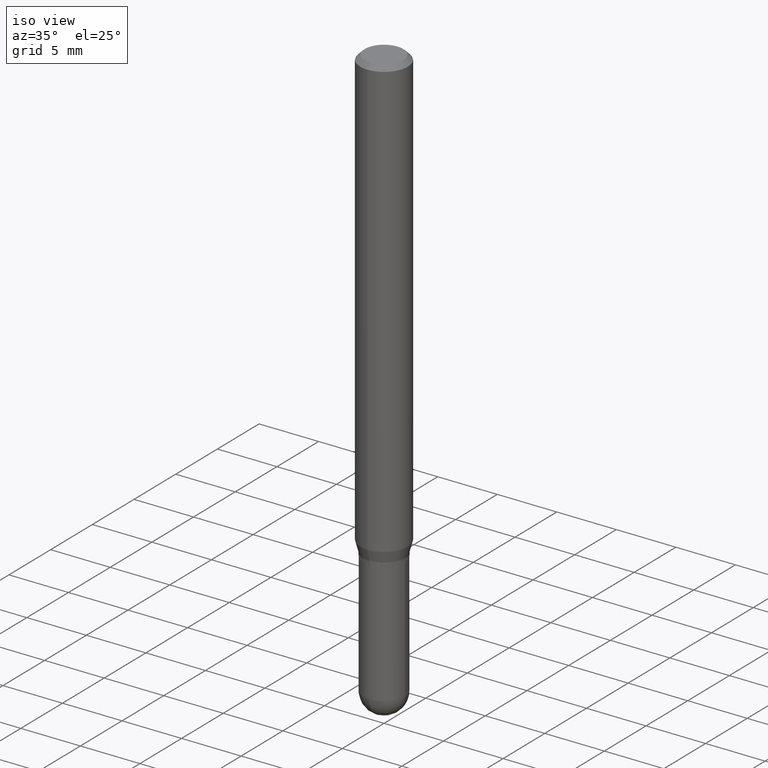
[diagram: clean part render]
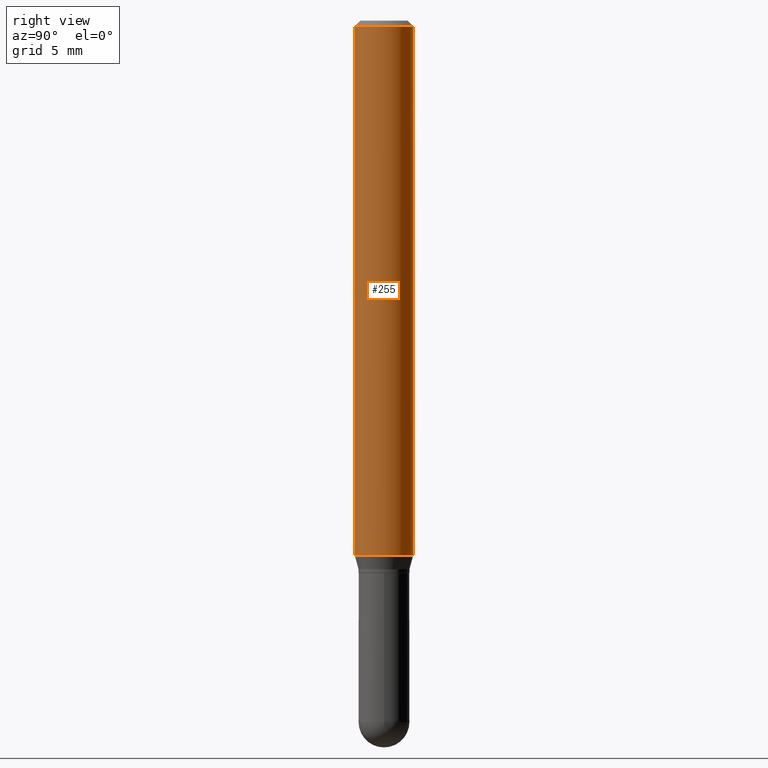
[diagram: tour spotlight — one face highlighted and labeled with its STEP entity id]
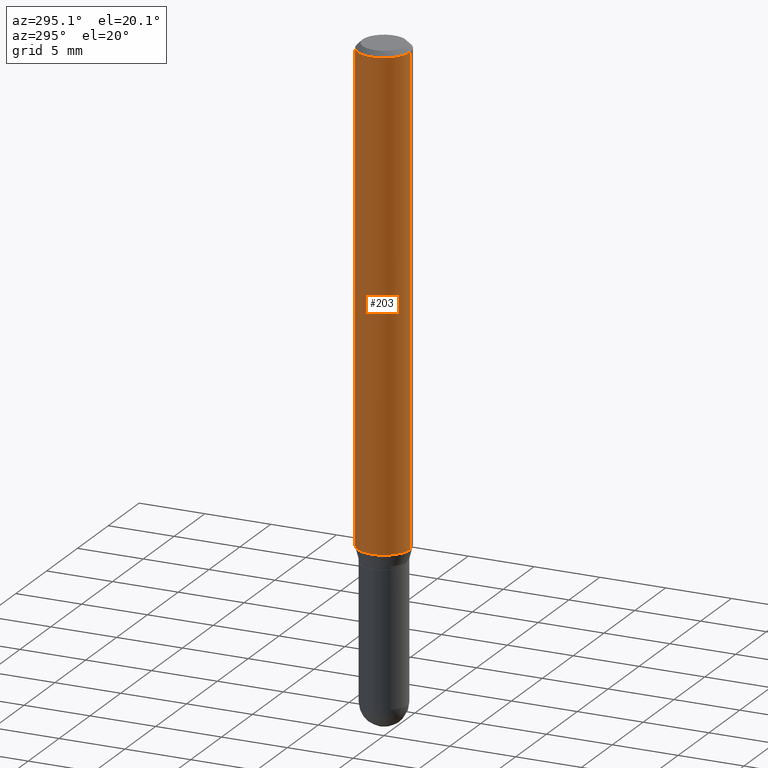
[diagram: tour spotlight — one face highlighted and labeled with its STEP entity id]
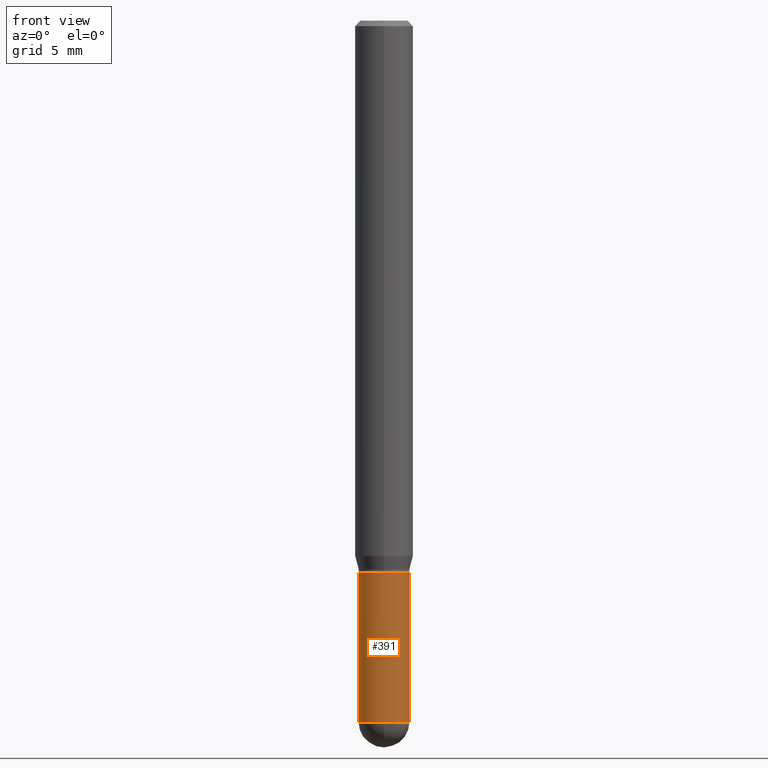
[diagram: tour spotlight — one face highlighted and labeled with its STEP entity id]
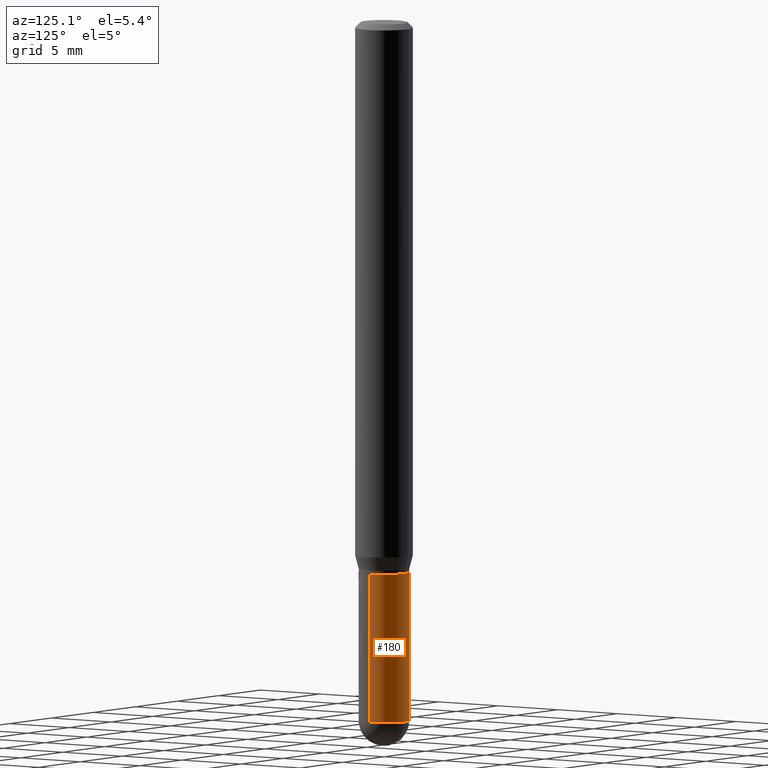
[diagram: tour spotlight — one face highlighted and labeled with its STEP entity id]
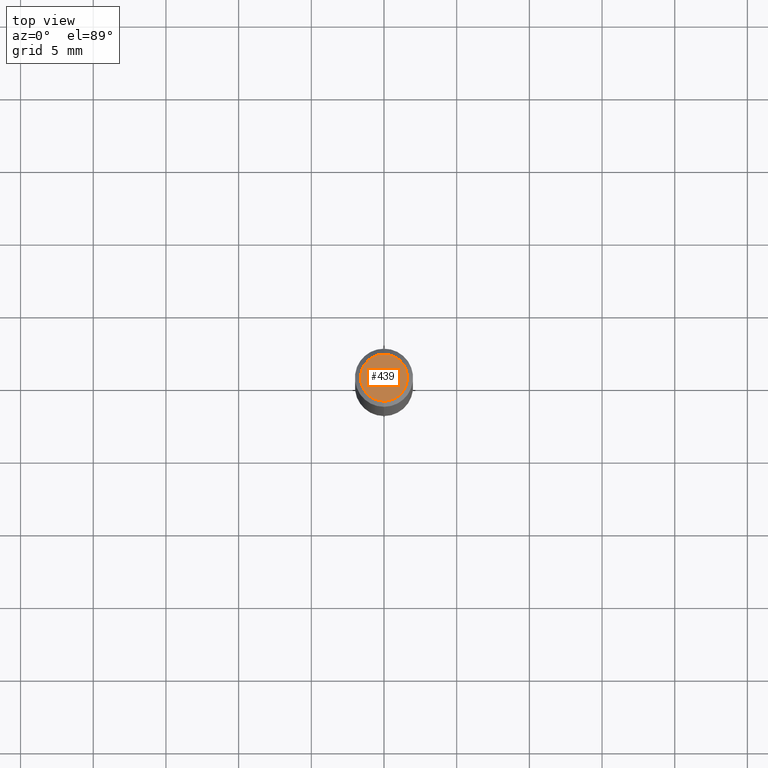
[diagram: tour spotlight — one face highlighted and labeled with its STEP entity id]
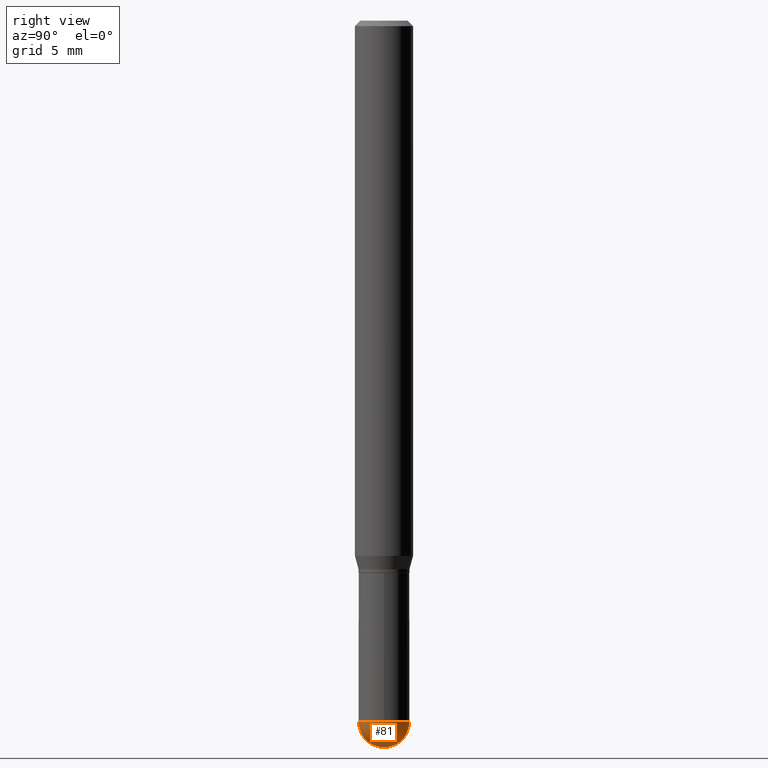
[diagram: tour spotlight — one face highlighted and labeled with its STEP entity id]
A machine part: a face-by-face anatomy tour. The part has 17 B-rep faces; the first image is the clean iso view, then the 6 largest visible faces are spotlighted one at a time (largest first), each with its STEP entity span.

Face 1 — right view, entity #255. In plain terms, the highlighted cylindrical surface (edge-blend (fillet) strip) has radius 2.0002 mm, axis along (-0, 0, 1).
Definition (entity closure, byte-faithful):
#2 = CIRCLE ( 'NONE', #61, 0.07875000000000000056 ) ;
#8 = CARTESIAN_POINT ( 'NONE',  ( -5.499083108677930499E-16, -0.07875000000000004219, -0.01499999999999973403 ) ) ;
#27 = EDGE_CURVE ( 'NONE', #507, #297, #350, .T. ) ;
#54 = CARTESIAN_POINT ( 'NONE',  ( 5.595524044111143991E-16, 0.07874999999999994504, -0.01500000000000028394 ) ) ;
#61 = AXIS2_PLACEMENT_3D ( 'NONE', #432, #241, #441 ) ;
#74 = EDGE_CURVE ( 'NONE', #297, #286, #2, .T. ) ;
#76 = AXIS2_PLACEMENT_3D ( 'NONE', #436, #315, #478 ) ;
#94 = VERTEX_POINT ( 'NONE', #479 ) ;
#101 = ORIENTED_EDGE ( 'NONE', *, *, #74, .F. ) ;
#132 = FACE_OUTER_BOUND ( 'NONE', #388, .T. ) ;
#134 = ORIENTED_EDGE ( 'NONE', *, *, #187, .T. ) ;
#167 = CYLINDRICAL_SURFACE ( 'NONE', #451, 0.07874999999999997280 ) ;
#181 = CARTESIAN_POINT ( 'NONE',  ( -5.499083108677578469E-16, -0.07875000000000501044, -1.449339299545445270 ) ) ;
#187 = EDGE_CURVE ( 'NONE', #507, #94, #497, .T. ) ;
#194 = DIRECTION ( 'NONE',  ( -2.445670945378724655E-29, 3.491191864012879314E-15, 1.000000000000000000 ) ) ;
#217 = DIRECTION ( 'NONE',  ( -6.982962677686265922E-15, -1.000000000000000000, 3.491191864012879709E-15 ) ) ;
#221 = EDGE_CURVE ( 'NONE', #94, #286, #232, .T. ) ;
#222 = CARTESIAN_POINT ( 'NONE',  ( -5.499083108677932471E-16, -0.07874999999999997280, 2.749313592910141844E-16 ) ) ;
#229 = ORIENTED_EDGE ( 'NONE', *, *, #221, .T. ) ;
#232 = LINE ( 'NONE', #395, #418 ) ;
#241 = DIRECTION ( 'NONE',  ( -2.445670945378724655E-29, 3.491191864012879314E-15, 1.000000000000000000 ) ) ;
#255 = ADVANCED_FACE ( 'NONE', ( #132 ), #167, .T. ) ;
#286 = VERTEX_POINT ( 'NONE', #54 ) ;
#297 = VERTEX_POINT ( 'NONE', #8 ) ;
#315 = DIRECTION ( 'NONE',  ( -2.445670945378724655E-29, 3.491191864012879314E-15, 1.000000000000000000 ) ) ;
#331 = DIRECTION ( 'NONE',  ( -2.445670945378724655E-29, 3.491191864012879314E-15, 1.000000000000000000 ) ) ;
#335 = ORIENTED_EDGE ( 'NONE', *, *, #27, .F. ) ;
#342 = DIRECTION ( 'NONE',  ( -2.445670945378724655E-29, 3.491191864012879314E-15, 1.000000000000000000 ) ) ;
#350 = LINE ( 'NONE', #222, #490 ) ;
#388 = EDGE_LOOP ( 'NONE', ( #134, #229, #101, #335 ) ) ;
#395 = CARTESIAN_POINT ( 'NONE',  ( 5.595524044110786045E-16, 0.07874999999999997280, -2.749313592910141844E-16 ) ) ;
#418 = VECTOR ( 'NONE', #194, 39.37007874015748143 ) ;
#432 = CARTESIAN_POINT ( 'NONE',  ( 3.668506418068089103E-31, -5.236787796019322053E-17, -0.01500000000000000812 ) ) ;
#436 = CARTESIAN_POINT ( 'NONE',  ( 3.544607014893848189E-29, -5.059921570767185475E-15, -1.449339299545445714 ) ) ;
#441 = DIRECTION ( 'NONE',  ( -6.982962677686264344E-15, -1.000000000000000000, 3.496114991891765576E-15 ) ) ;
#451 = AXIS2_PLACEMENT_3D ( 'NONE', #455, #331, #217 ) ;
#455 = CARTESIAN_POINT ( 'NONE',  ( 0.000000000000000000, 0.000000000000000000, 0.000000000000000000 ) ) ;
#478 = DIRECTION ( 'NONE',  ( -6.982962677686265922E-15, -1.000000000000000000, 3.469013325287954477E-15 ) ) ;
#479 = CARTESIAN_POINT ( 'NONE',  ( 5.595524044111142018E-16, 0.07874999999999494904, -1.449339299545445936 ) ) ;
#490 = VECTOR ( 'NONE', #342, 39.37007874015748143 ) ;
#497 = CIRCLE ( 'NONE', #76, 0.07874999999999997280 ) ;
#507 = VERTEX_POINT ( 'NONE', #181 ) ;

Face 2 — auxiliary view, entity #203. In plain terms, the highlighted cylindrical surface (edge-blend (fillet) strip) has radius 2.0002 mm, axis along (-0, 0, 1).
Definition (entity closure, byte-faithful):
#8 = CARTESIAN_POINT ( 'NONE',  ( -5.499083108677930499E-16, -0.07875000000000004219, -0.01499999999999973403 ) ) ;
#12 = EDGE_CURVE ( 'NONE', #94, #507, #140, .T. ) ;
#27 = EDGE_CURVE ( 'NONE', #507, #297, #350, .T. ) ;
#54 = CARTESIAN_POINT ( 'NONE',  ( 5.595524044111143991E-16, 0.07874999999999994504, -0.01500000000000028394 ) ) ;
#85 = AXIS2_PLACEMENT_3D ( 'NONE', #280, #355, #154 ) ;
#93 = CIRCLE ( 'NONE', #435, 0.07875000000000000056 ) ;
#94 = VERTEX_POINT ( 'NONE', #479 ) ;
#123 = DIRECTION ( 'NONE',  ( -6.982962677686264344E-15, -1.000000000000000000, 3.496114991891765576E-15 ) ) ;
#140 = CIRCLE ( 'NONE', #207, 0.07874999999999997280 ) ;
#148 = DIRECTION ( 'NONE',  ( -6.982962677686265922E-15, -1.000000000000000000, 3.469013325287954477E-15 ) ) ;
#149 = EDGE_CURVE ( 'NONE', #286, #297, #93, .T. ) ;
#154 = DIRECTION ( 'NONE',  ( -6.982962677686265922E-15, -1.000000000000000000, 3.491191864012879709E-15 ) ) ;
#161 = FACE_OUTER_BOUND ( 'NONE', #259, .T. ) ;
#181 = CARTESIAN_POINT ( 'NONE',  ( -5.499083108677578469E-16, -0.07875000000000501044, -1.449339299545445270 ) ) ;
#194 = DIRECTION ( 'NONE',  ( -2.445670945378724655E-29, 3.491191864012879314E-15, 1.000000000000000000 ) ) ;
#203 = ADVANCED_FACE ( 'NONE', ( #161 ), #278, .T. ) ;
#207 = AXIS2_PLACEMENT_3D ( 'NONE', #265, #225, #148 ) ;
#219 = ORIENTED_EDGE ( 'NONE', *, *, #27, .T. ) ;
#221 = EDGE_CURVE ( 'NONE', #94, #286, #232, .T. ) ;
#222 = CARTESIAN_POINT ( 'NONE',  ( -5.499083108677932471E-16, -0.07874999999999997280, 2.749313592910141844E-16 ) ) ;
#225 = DIRECTION ( 'NONE',  ( -2.445670945378724655E-29, 3.491191864012879314E-15, 1.000000000000000000 ) ) ;
#232 = LINE ( 'NONE', #395, #418 ) ;
#259 = EDGE_LOOP ( 'NONE', ( #290, #304, #219, #502 ) ) ;
#265 = CARTESIAN_POINT ( 'NONE',  ( 3.544607014893848189E-29, -5.059921570767185475E-15, -1.449339299545445714 ) ) ;
#278 = CYLINDRICAL_SURFACE ( 'NONE', #85, 0.07874999999999997280 ) ;
#280 = CARTESIAN_POINT ( 'NONE',  ( 0.000000000000000000, 0.000000000000000000, 0.000000000000000000 ) ) ;
#286 = VERTEX_POINT ( 'NONE', #54 ) ;
#290 = ORIENTED_EDGE ( 'NONE', *, *, #221, .F. ) ;
#297 = VERTEX_POINT ( 'NONE', #8 ) ;
#304 = ORIENTED_EDGE ( 'NONE', *, *, #12, .T. ) ;
#342 = DIRECTION ( 'NONE',  ( -2.445670945378724655E-29, 3.491191864012879314E-15, 1.000000000000000000 ) ) ;
#350 = LINE ( 'NONE', #222, #490 ) ;
#355 = DIRECTION ( 'NONE',  ( -2.445670945378724655E-29, 3.491191864012879314E-15, 1.000000000000000000 ) ) ;
#358 = CARTESIAN_POINT ( 'NONE',  ( 3.668506418068089103E-31, -5.236787796019322053E-17, -0.01500000000000000812 ) ) ;
#395 = CARTESIAN_POINT ( 'NONE',  ( 5.595524044110786045E-16, 0.07874999999999997280, -2.749313592910141844E-16 ) ) ;
#418 = VECTOR ( 'NONE', #194, 39.37007874015748143 ) ;
#435 = AXIS2_PLACEMENT_3D ( 'NONE', #358, #481, #123 ) ;
#479 = CARTESIAN_POINT ( 'NONE',  ( 5.595524044111142018E-16, 0.07874999999999494904, -1.449339299545445936 ) ) ;
#481 = DIRECTION ( 'NONE',  ( -2.445670945378724655E-29, 3.491191864012879314E-15, 1.000000000000000000 ) ) ;
#490 = VECTOR ( 'NONE', #342, 39.37007874015748143 ) ;
#502 = ORIENTED_EDGE ( 'NONE', *, *, #149, .F. ) ;
#507 = VERTEX_POINT ( 'NONE', #181 ) ;

Face 3 — front view, entity #391. In plain terms, the highlighted cylindrical surface (edge-blend (fillet) strip) has radius 1.7501 mm, axis along (-0, 0, 1).
Definition (entity closure, byte-faithful):
#16 = VERTEX_POINT ( 'NONE', #72 ) ;
#41 = CARTESIAN_POINT ( 'NONE',  ( 4.645412544229285965E-29, -6.632417951266439838E-15, -1.899600000000000177 ) ) ;
#45 = LINE ( 'NONE', #317, #164 ) ;
#52 = CIRCLE ( 'NONE', #86, 0.06890000000000007230 ) ;
#72 = CARTESIAN_POINT ( 'NONE',  ( -4.895639449386624073E-16, -0.06890000000000662261, -1.899599999999999955 ) ) ;
#86 = AXIS2_PLACEMENT_3D ( 'NONE', #186, #469, #336 ) ;
#90 = CARTESIAN_POINT ( 'NONE',  ( 3.658665880933582389E-29, -5.223605231043229660E-15, -1.496099999999999985 ) ) ;
#98 = EDGE_CURVE ( 'NONE', #16, #295, #118, .T. ) ;
#118 = CIRCLE ( 'NONE', #192, 0.06890000000000007230 ) ;
#127 = DIRECTION ( 'NONE',  ( -2.445468806185136597E-29, 3.491481338843145583E-15, 1.000000000000000000 ) ) ;
#128 = ORIENTED_EDGE ( 'NONE', *, *, #98, .T. ) ;
#151 = ORIENTED_EDGE ( 'NONE', *, *, #284, .F. ) ;
#156 = DIRECTION ( 'NONE',  ( -2.445468806185136597E-29, 3.491481338843145583E-15, 1.000000000000000000 ) ) ;
#164 = VECTOR ( 'NONE', #270, 39.37007874015748143 ) ;
#176 = DIRECTION ( 'NONE',  ( -2.445468806185136877E-29, 3.491481338843145188E-15, 1.000000000000000000 ) ) ;
#185 = ORIENTED_EDGE ( 'NONE', *, *, #444, .T. ) ;
#186 = CARTESIAN_POINT ( 'NONE',  ( 4.645412544229285965E-29, -6.632417951266439838E-15, -1.899600000000000177 ) ) ;
#192 = AXIS2_PLACEMENT_3D ( 'NONE', #41, #156, #396 ) ;
#205 = CYLINDRICAL_SURFACE ( 'NONE', #460, 0.06890000000000007230 ) ;
#211 = EDGE_CURVE ( 'NONE', #295, #321, #45, .T. ) ;
#213 = ORIENTED_EDGE ( 'NONE', *, *, #211, .T. ) ;
#215 = FACE_OUTER_BOUND ( 'NONE', #447, .T. ) ;
#226 = AXIS2_PLACEMENT_3D ( 'NONE', #90, #289, #377 ) ;
#251 = CARTESIAN_POINT ( 'NONE',  ( 0.06890000000000008618, -6.409137719647418882E-15, -1.899600000000000177 ) ) ;
#253 = DIRECTION ( 'NONE',  ( 1.000000000000000000, -6.982962677686265922E-15, 4.876176775795935232E-29 ) ) ;
#268 = CARTESIAN_POINT ( 'NONE',  ( -0.06890000000000008618, -5.438447646216124813E-15, -1.899600000000000177 ) ) ;
#270 = DIRECTION ( 'NONE',  ( -2.445468806185136877E-29, 3.491481338843145188E-15, 1.000000000000000000 ) ) ;
#284 = EDGE_CURVE ( 'NONE', #504, #369, #446, .T. ) ;
#289 = DIRECTION ( 'NONE',  ( -2.445468806185136597E-29, 3.491481338843145583E-15, 1.000000000000000000 ) ) ;
#293 = EDGE_CURVE ( 'NONE', #369, #321, #339, .T. ) ;
#295 = VERTEX_POINT ( 'NONE', #251 ) ;
#317 = CARTESIAN_POINT ( 'NONE',  ( 0.06890000000000007230, -4.811261284925842315E-16, 3.359685798523402771E-30 ) ) ;
#321 = VERTEX_POINT ( 'NONE', #370 ) ;
#336 = DIRECTION ( 'NONE',  ( 1.000000000000000000, -6.982962677686273021E-15, 0.000000000000000000 ) ) ;
#339 = CIRCLE ( 'NONE', #226, 0.06890000000000007230 ) ;
#369 = VERTEX_POINT ( 'NONE', #414 ) ;
#370 = CARTESIAN_POINT ( 'NONE',  ( 0.06890000000000007230, -5.704731359535814187E-15, -1.496099999999999985 ) ) ;
#373 = CARTESIAN_POINT ( 'NONE',  ( 0.000000000000000000, 0.000000000000000000, 0.000000000000000000 ) ) ;
#375 = VECTOR ( 'NONE', #176, 39.37007874015748143 ) ;
#377 = DIRECTION ( 'NONE',  ( 1.000000000000000000, -6.982962677686273021E-15, 0.000000000000000000 ) ) ;
#391 = ADVANCED_FACE ( 'NONE', ( #215 ), #205, .T. ) ;
#396 = DIRECTION ( 'NONE',  ( 1.000000000000000000, -6.982962677686273021E-15, 0.000000000000000000 ) ) ;
#414 = CARTESIAN_POINT ( 'NONE',  ( -0.06890000000000007230, -5.438447646216124813E-15, -1.496099999999999985 ) ) ;
#444 = EDGE_CURVE ( 'NONE', #504, #16, #52, .T. ) ;
#446 = LINE ( 'NONE', #491, #375 ) ;
#447 = EDGE_LOOP ( 'NONE', ( #151, #185, #128, #213, #492 ) ) ;
#460 = AXIS2_PLACEMENT_3D ( 'NONE', #373, #127, #253 ) ;
#469 = DIRECTION ( 'NONE',  ( -2.445468806185136597E-29, 3.491481338843145583E-15, 1.000000000000000000 ) ) ;
#491 = CARTESIAN_POINT ( 'NONE',  ( -0.06890000000000007230, 4.895639449387095418E-16, -3.389146277185633520E-30 ) ) ;
#492 = ORIENTED_EDGE ( 'NONE', *, *, #293, .F. ) ;
#504 = VERTEX_POINT ( 'NONE', #268 ) ;

Face 4 — auxiliary view, entity #180. In plain terms, the highlighted cylindrical surface (edge-blend (fillet) strip) has radius 1.7501 mm, axis along (-0, 0, 1).
Definition (entity closure, byte-faithful):
#20 = EDGE_CURVE ( 'NONE', #321, #369, #338, .T. ) ;
#29 = CARTESIAN_POINT ( 'NONE',  ( 4.811261284926304785E-16, 0.06889999999999341096, -1.899600000000000399 ) ) ;
#33 = VERTEX_POINT ( 'NONE', #29 ) ;
#45 = LINE ( 'NONE', #317, #164 ) ;
#88 = CARTESIAN_POINT ( 'NONE',  ( 4.645412544229285965E-29, -6.632417951266439838E-15, -1.899600000000000177 ) ) ;
#95 = CIRCLE ( 'NONE', #452, 0.06890000000000007230 ) ;
#104 = EDGE_LOOP ( 'NONE', ( #484, #458, #371, #182, #283 ) ) ;
#116 = DIRECTION ( 'NONE',  ( 1.000000000000000000, -6.982962677686265922E-15, 4.876176775795935232E-29 ) ) ;
#143 = DIRECTION ( 'NONE',  ( -2.445468806185136597E-29, 3.491481338843145583E-15, 1.000000000000000000 ) ) ;
#160 = DIRECTION ( 'NONE',  ( -2.445468806185136597E-29, 3.491481338843145583E-15, 1.000000000000000000 ) ) ;
#162 = FACE_OUTER_BOUND ( 'NONE', #104, .T. ) ;
#164 = VECTOR ( 'NONE', #270, 39.37007874015748143 ) ;
#172 = AXIS2_PLACEMENT_3D ( 'NONE', #88, #448, #483 ) ;
#176 = DIRECTION ( 'NONE',  ( -2.445468806185136877E-29, 3.491481338843145188E-15, 1.000000000000000000 ) ) ;
#180 = ADVANCED_FACE ( 'NONE', ( #162 ), #509, .T. ) ;
#182 = ORIENTED_EDGE ( 'NONE', *, *, #211, .F. ) ;
#190 = DIRECTION ( 'NONE',  ( 1.000000000000000000, -6.982962677686273021E-15, 0.000000000000000000 ) ) ;
#211 = EDGE_CURVE ( 'NONE', #295, #321, #45, .T. ) ;
#230 = CARTESIAN_POINT ( 'NONE',  ( 3.658665880933582389E-29, -5.223605231043229660E-15, -1.496099999999999985 ) ) ;
#251 = CARTESIAN_POINT ( 'NONE',  ( 0.06890000000000008618, -6.409137719647418882E-15, -1.899600000000000177 ) ) ;
#268 = CARTESIAN_POINT ( 'NONE',  ( -0.06890000000000008618, -5.438447646216124813E-15, -1.899600000000000177 ) ) ;
#270 = DIRECTION ( 'NONE',  ( -2.445468806185136877E-29, 3.491481338843145188E-15, 1.000000000000000000 ) ) ;
#274 = AXIS2_PLACEMENT_3D ( 'NONE', #230, #423, #190 ) ;
#283 = ORIENTED_EDGE ( 'NONE', *, *, #474, .T. ) ;
#284 = EDGE_CURVE ( 'NONE', #504, #369, #446, .T. ) ;
#295 = VERTEX_POINT ( 'NONE', #251 ) ;
#317 = CARTESIAN_POINT ( 'NONE',  ( 0.06890000000000007230, -4.811261284925842315E-16, 3.359685798523402771E-30 ) ) ;
#321 = VERTEX_POINT ( 'NONE', #370 ) ;
#338 = CIRCLE ( 'NONE', #274, 0.06890000000000007230 ) ;
#351 = EDGE_CURVE ( 'NONE', #33, #504, #401, .T. ) ;
#361 = CARTESIAN_POINT ( 'NONE',  ( 0.000000000000000000, 0.000000000000000000, 0.000000000000000000 ) ) ;
#369 = VERTEX_POINT ( 'NONE', #414 ) ;
#370 = CARTESIAN_POINT ( 'NONE',  ( 0.06890000000000007230, -5.704731359535814187E-15, -1.496099999999999985 ) ) ;
#371 = ORIENTED_EDGE ( 'NONE', *, *, #20, .F. ) ;
#375 = VECTOR ( 'NONE', #176, 39.37007874015748143 ) ;
#394 = AXIS2_PLACEMENT_3D ( 'NONE', #361, #160, #116 ) ;
#401 = CIRCLE ( 'NONE', #172, 0.06890000000000007230 ) ;
#414 = CARTESIAN_POINT ( 'NONE',  ( -0.06890000000000007230, -5.438447646216124813E-15, -1.496099999999999985 ) ) ;
#423 = DIRECTION ( 'NONE',  ( -2.445468806185136597E-29, 3.491481338843145583E-15, 1.000000000000000000 ) ) ;
#446 = LINE ( 'NONE', #491, #375 ) ;
#448 = DIRECTION ( 'NONE',  ( -2.445468806185136597E-29, 3.491481338843145583E-15, 1.000000000000000000 ) ) ;
#452 = AXIS2_PLACEMENT_3D ( 'NONE', #498, #143, #500 ) ;
#458 = ORIENTED_EDGE ( 'NONE', *, *, #284, .T. ) ;
#474 = EDGE_CURVE ( 'NONE', #295, #33, #95, .T. ) ;
#483 = DIRECTION ( 'NONE',  ( 1.000000000000000000, -6.982962677686273021E-15, 0.000000000000000000 ) ) ;
#484 = ORIENTED_EDGE ( 'NONE', *, *, #351, .T. ) ;
#491 = CARTESIAN_POINT ( 'NONE',  ( -0.06890000000000007230, 4.895639449387095418E-16, -3.389146277185633520E-30 ) ) ;
#498 = CARTESIAN_POINT ( 'NONE',  ( 4.645412544229285965E-29, -6.632417951266439838E-15, -1.899600000000000177 ) ) ;
#500 = DIRECTION ( 'NONE',  ( 1.000000000000000000, -6.982962677686273021E-15, 0.000000000000000000 ) ) ;
#504 = VERTEX_POINT ( 'NONE', #268 ) ;
#509 = CYLINDRICAL_SURFACE ( 'NONE', #394, 0.06890000000000007230 ) ;

Face 5 — top view, entity #439. In plain terms, the highlighted planar face has unit normal (0, -0, -1).
Definition (entity closure, byte-faithful):
#15 = DIRECTION ( 'NONE',  ( -2.445670945378724655E-29, 3.491191864012879314E-15, 1.000000000000000000 ) ) ;
#44 = AXIS2_PLACEMENT_3D ( 'NONE', #344, #298, #69 ) ;
#69 = DIRECTION ( 'NONE',  ( 6.982962677686265922E-15, 1.000000000000000000, -3.491191864012879314E-15 ) ) ;
#75 = CARTESIAN_POINT ( 'NONE',  ( -4.888104823412213911E-16, -0.06375000000000000111, 2.141869659503777989E-16 ) ) ;
#103 = CARTESIAN_POINT ( 'NONE',  ( 2.048620028946805468E-46, -2.924402234498220248E-32, -8.376515380443243552E-18 ) ) ;
#141 = VERTEX_POINT ( 'NONE', #75 ) ;
#165 = DIRECTION ( 'NONE',  ( -6.982962677686264344E-15, -1.000000000000000000, 3.491191864012878920E-15 ) ) ;
#183 = AXIS2_PLACEMENT_3D ( 'NONE', #281, #15, #165 ) ;
#189 = CARTESIAN_POINT ( 'NONE',  ( 4.975360907851465623E-16, 0.06375000000000000111, -2.309399967112643384E-16 ) ) ;
#247 = ORIENTED_EDGE ( 'NONE', *, *, #485, .T. ) ;
#254 = ORIENTED_EDGE ( 'NONE', *, *, #299, .T. ) ;
#258 = CIRCLE ( 'NONE', #376, 0.06375000000000000111 ) ;
#281 = CARTESIAN_POINT ( 'NONE',  ( 2.048620028946805468E-46, -2.924402234498220248E-32, -8.376515380443243552E-18 ) ) ;
#298 = DIRECTION ( 'NONE',  ( 2.445670945378724095E-29, -3.491191864012879314E-15, -1.000000000000000000 ) ) ;
#299 = EDGE_CURVE ( 'NONE', #425, #141, #408, .T. ) ;
#340 = PLANE ( 'NONE',  #44 ) ;
#344 = CARTESIAN_POINT ( 'NONE',  ( 4.451638707024993845E-16, 0.06375000000000000111, -2.267517390210426665E-16 ) ) ;
#376 = AXIS2_PLACEMENT_3D ( 'NONE', #103, #503, #379 ) ;
#379 = DIRECTION ( 'NONE',  ( -6.982962677686264344E-15, -1.000000000000000000, 3.491191864012878920E-15 ) ) ;
#408 = CIRCLE ( 'NONE', #183, 0.06375000000000000111 ) ;
#425 = VERTEX_POINT ( 'NONE', #189 ) ;
#439 = ADVANCED_FACE ( 'NONE', ( #495 ), #340, .F. ) ;
#450 = EDGE_LOOP ( 'NONE', ( #254, #247 ) ) ;
#485 = EDGE_CURVE ( 'NONE', #141, #425, #258, .T. ) ;
#495 = FACE_OUTER_BOUND ( 'NONE', #450, .T. ) ;
#503 = DIRECTION ( 'NONE',  ( -2.445670945378724655E-29, 3.491191864012879314E-15, 1.000000000000000000 ) ) ;

Face 6 — right view, entity #81. In plain terms, the highlighted spherical surface has radius 1.7501 mm.
Definition (entity closure, byte-faithful):
#6 = DIRECTION ( 'NONE',  ( 6.982962677686265922E-15, 1.000000000000000000, -3.964946289788482474E-15 ) ) ;
#9 = ORIENTED_EDGE ( 'NONE', *, *, #501, .F. ) ;
#13 = DIRECTION ( 'NONE',  ( 1.000000000000000000, -6.982962677686265922E-15, 4.883557194083112340E-29 ) ) ;
#16 = VERTEX_POINT ( 'NONE', #72 ) ;
#29 = CARTESIAN_POINT ( 'NONE',  ( 4.811261284926304785E-16, 0.06889999999999341096, -1.899600000000000399 ) ) ;
#33 = VERTEX_POINT ( 'NONE', #29 ) ;
#41 = CARTESIAN_POINT ( 'NONE',  ( 4.645412544229285965E-29, -6.632417951266439838E-15, -1.899600000000000177 ) ) ;
#51 = EDGE_LOOP ( 'NONE', ( #9, #262, #130, #57 ) ) ;
#57 = ORIENTED_EDGE ( 'NONE', *, *, #98, .F. ) ;
#71 = DIRECTION ( 'NONE',  ( -7.105427357601001859E-15, -1.000000000000000000, 0.000000000000000000 ) ) ;
#72 = CARTESIAN_POINT ( 'NONE',  ( -4.895639449386624073E-16, -0.06890000000000662261, -1.899599999999999955 ) ) ;
#78 = FACE_OUTER_BOUND ( 'NONE', #51, .T. ) ;
#81 = ADVANCED_FACE ( 'NONE', ( #78 ), #512, .T. ) ;
#95 = CIRCLE ( 'NONE', #452, 0.06890000000000007230 ) ;
#98 = EDGE_CURVE ( 'NONE', #16, #295, #118, .T. ) ;
#110 = CIRCLE ( 'NONE', #367, 0.06889999999999996128 ) ;
#118 = CIRCLE ( 'NONE', #192, 0.06890000000000007230 ) ;
#122 = CARTESIAN_POINT ( 'NONE',  ( 4.679918503997674770E-29, -6.583003452920844326E-15, -1.899600000000000177 ) ) ;
#130 = ORIENTED_EDGE ( 'NONE', *, *, #474, .F. ) ;
#133 = AXIS2_PLACEMENT_3D ( 'NONE', #334, #13, #411 ) ;
#136 = VERTEX_POINT ( 'NONE', #403 ) ;
#139 = CARTESIAN_POINT ( 'NONE',  ( 4.679918503997674770E-29, -6.583003452920844326E-15, -1.899600000000000177 ) ) ;
#143 = DIRECTION ( 'NONE',  ( -2.445468806185136597E-29, 3.491481338843145583E-15, 1.000000000000000000 ) ) ;
#147 = DIRECTION ( 'NONE',  ( -1.000000000000000000, 7.105427357601001070E-15, -4.926315508542082329E-29 ) ) ;
#156 = DIRECTION ( 'NONE',  ( -2.445468806185136597E-29, 3.491481338843145583E-15, 1.000000000000000000 ) ) ;
#192 = AXIS2_PLACEMENT_3D ( 'NONE', #41, #156, #396 ) ;
#251 = CARTESIAN_POINT ( 'NONE',  ( 0.06890000000000008618, -6.409137719647418882E-15, -1.899600000000000177 ) ) ;
#262 = ORIENTED_EDGE ( 'NONE', *, *, #279, .T. ) ;
#279 = EDGE_CURVE ( 'NONE', #136, #33, #459, .T. ) ;
#295 = VERTEX_POINT ( 'NONE', #251 ) ;
#334 = CARTESIAN_POINT ( 'NONE',  ( 4.679918503997674770E-29, -6.583003452920844326E-15, -1.899600000000000177 ) ) ;
#366 = AXIS2_PLACEMENT_3D ( 'NONE', #122, #399, #6 ) ;
#367 = AXIS2_PLACEMENT_3D ( 'NONE', #139, #147, #71 ) ;
#396 = DIRECTION ( 'NONE',  ( 1.000000000000000000, -6.982962677686273021E-15, 0.000000000000000000 ) ) ;
#399 = DIRECTION ( 'NONE',  ( -1.000000000000000000, 6.982962677686265922E-15, -4.883557194083112901E-29 ) ) ;
#403 = CARTESIAN_POINT ( 'NONE',  ( 4.851357352610053575E-29, -6.819347608944073688E-15, -1.968500000000000139 ) ) ;
#411 = DIRECTION ( 'NONE',  ( 6.982962677686265922E-15, 1.000000000000000000, 0.000000000000000000 ) ) ;
#452 = AXIS2_PLACEMENT_3D ( 'NONE', #498, #143, #500 ) ;
#459 = CIRCLE ( 'NONE', #133, 0.06889999999999996128 ) ;
#474 = EDGE_CURVE ( 'NONE', #295, #33, #95, .T. ) ;
#498 = CARTESIAN_POINT ( 'NONE',  ( 4.645412544229285965E-29, -6.632417951266439838E-15, -1.899600000000000177 ) ) ;
#500 = DIRECTION ( 'NONE',  ( 1.000000000000000000, -6.982962677686273021E-15, 0.000000000000000000 ) ) ;
#501 = EDGE_CURVE ( 'NONE', #136, #16, #110, .T. ) ;
#512 = SPHERICAL_SURFACE ( 'NONE', #366, 0.06889999999999996128 ) ;